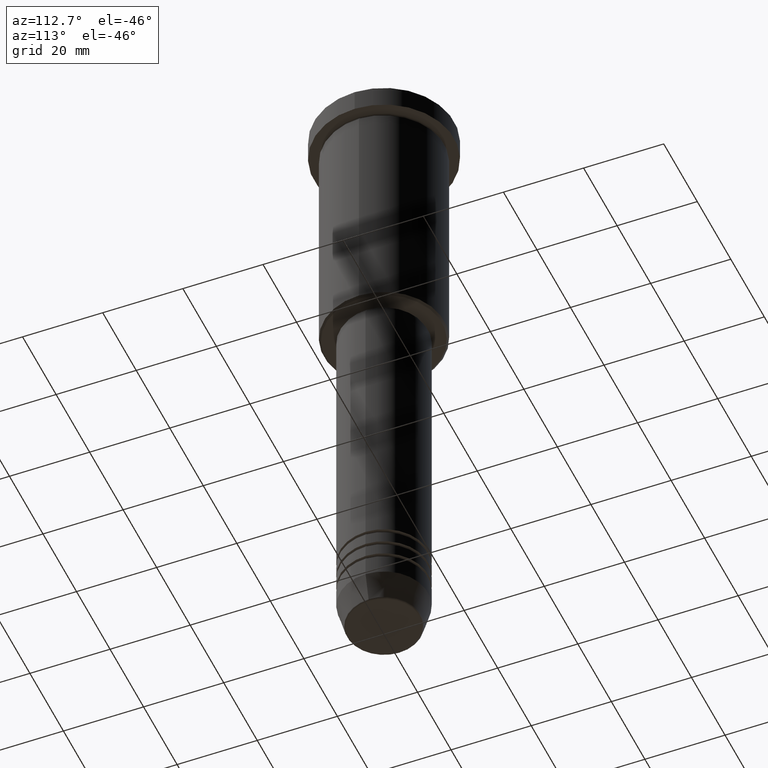
[diagram: clean part render]
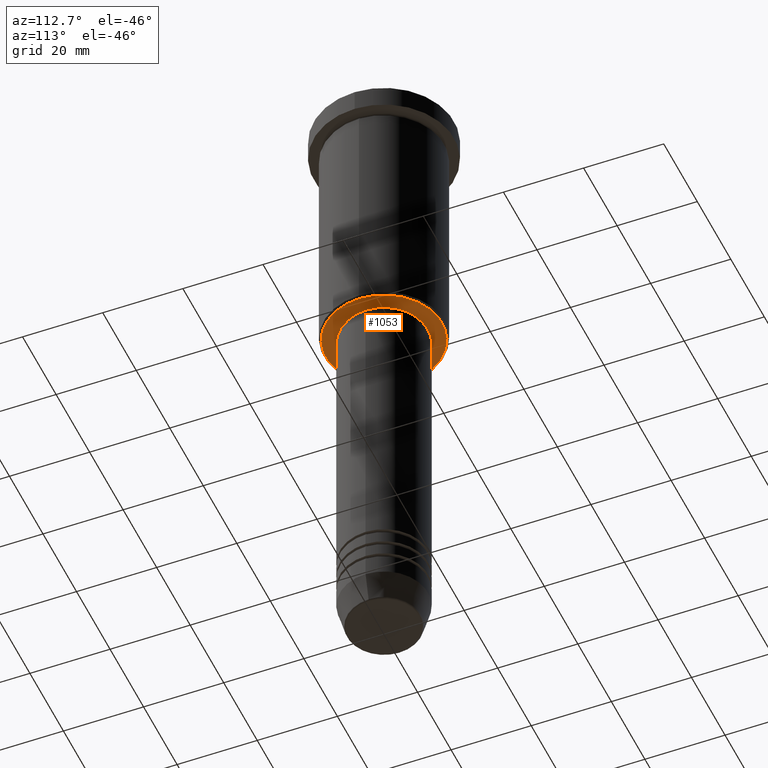
[diagram: same view with one face highlighted and labeled with its STEP entity id]
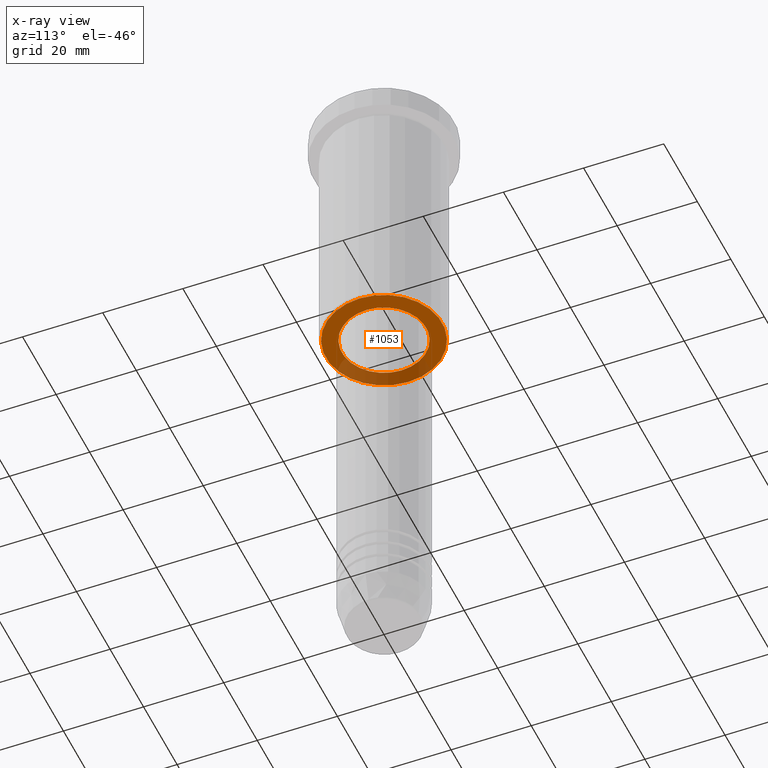
[diagram: x-ray of the same camera — body ghosted, the highlighted face saturated]
A machine part, auxiliary view. The second image highlights one B-rep face of the part: STEP entity #1053.
The next image is the same camera in x-ray: the body ghosted, the highlighted face saturated — about 29% of this face is hidden behind the body in this view.
In plain terms, the highlighted planar face has unit normal (0, 0, -1).
Its self-contained STEP definition (entity closure, byte-faithful):
#19 = AXIS2_PLACEMENT_3D ( 'NONE', #679, #1062, #150 ) ;
#109 = DIRECTION ( 'NONE',  ( 1.000000000000000000, 0.000000000000000000, 0.000000000000000000 ) ) ;
#111 = AXIS2_PLACEMENT_3D ( 'NONE', #141, #516, #602 ) ;
#141 = CARTESIAN_POINT ( 'NONE',  ( 0.000000000000000000, 0.000000000000000000, -66.00000000000002842 ) ) ;
#150 = DIRECTION ( 'NONE',  ( 1.000000000000000000, 0.000000000000000000, 0.000000000000000000 ) ) ;
#180 = FACE_BOUND ( 'NONE', #284, .T. ) ;
#252 = EDGE_CURVE ( 'NONE', #959, #542, #336, .T. ) ;
#267 = CARTESIAN_POINT ( 'NONE',  ( 0.000000000000000000, 0.000000000000000000, -66.00000000000002842 ) ) ;
#284 = EDGE_LOOP ( 'NONE', ( #873, #523 ) ) ;
#304 = CARTESIAN_POINT ( 'NONE',  ( -10.49999999999999822, 1.285879139104720633E-15, -66.00000000000002842 ) ) ;
#319 = AXIS2_PLACEMENT_3D ( 'NONE', #1177, #719, #1087 ) ;
#336 = CIRCLE ( 'NONE', #111, 14.50000000000002487 ) ;
#425 = VERTEX_POINT ( 'NONE', #980 ) ;
#449 = PLANE ( 'NONE',  #319 ) ;
#458 = EDGE_LOOP ( 'NONE', ( #793, #928 ) ) ;
#469 = EDGE_CURVE ( 'NONE', #542, #959, #760, .T. ) ;
#516 = DIRECTION ( 'NONE',  ( 0.000000000000000000, 0.000000000000000000, -1.000000000000000000 ) ) ;
#523 = ORIENTED_EDGE ( 'NONE', *, *, #923, .T. ) ;
#527 = DIRECTION ( 'NONE',  ( -1.000000000000000000, 0.000000000000000000, 0.000000000000000000 ) ) ;
#542 = VERTEX_POINT ( 'NONE', #932 ) ;
#547 = DIRECTION ( 'NONE',  ( 0.000000000000000000, 0.000000000000000000, -1.000000000000000000 ) ) ;
#556 = DIRECTION ( 'NONE',  ( -0.000000000000000000, -0.000000000000000000, 1.000000000000000000 ) ) ;
#602 = DIRECTION ( 'NONE',  ( -1.000000000000000000, 0.000000000000000000, 0.000000000000000000 ) ) ;
#647 = CARTESIAN_POINT ( 'NONE',  ( 0.000000000000000000, 0.000000000000000000, -66.00000000000002842 ) ) ;
#665 = AXIS2_PLACEMENT_3D ( 'NONE', #647, #556, #109 ) ;
#679 = CARTESIAN_POINT ( 'NONE',  ( 0.000000000000000000, 0.000000000000000000, -66.00000000000002842 ) ) ;
#699 = CARTESIAN_POINT ( 'NONE',  ( -14.50000000000002487, 1.806354028742347380E-15, -66.00000000000002842 ) ) ;
#719 = DIRECTION ( 'NONE',  ( 0.000000000000000000, 0.000000000000000000, -1.000000000000000000 ) ) ;
#760 = CIRCLE ( 'NONE', #1064, 14.50000000000002487 ) ;
#793 = ORIENTED_EDGE ( 'NONE', *, *, #469, .T. ) ;
#803 = VERTEX_POINT ( 'NONE', #304 ) ;
#807 = FACE_OUTER_BOUND ( 'NONE', #458, .T. ) ;
#869 = EDGE_CURVE ( 'NONE', #425, #803, #1033, .T. ) ;
#873 = ORIENTED_EDGE ( 'NONE', *, *, #869, .T. ) ;
#923 = EDGE_CURVE ( 'NONE', #803, #425, #1050, .T. ) ;
#928 = ORIENTED_EDGE ( 'NONE', *, *, #252, .T. ) ;
#932 = CARTESIAN_POINT ( 'NONE',  ( 14.50000000000002487, 0.000000000000000000, -66.00000000000002842 ) ) ;
#959 = VERTEX_POINT ( 'NONE', #699 ) ;
#980 = CARTESIAN_POINT ( 'NONE',  ( 10.49999999999999822, 0.000000000000000000, -66.00000000000002842 ) ) ;
#1033 = CIRCLE ( 'NONE', #665, 10.49999999999999822 ) ;
#1050 = CIRCLE ( 'NONE', #19, 10.49999999999999822 ) ;
#1053 = ADVANCED_FACE ( 'NONE', ( #807, #180 ), #449, .T. ) ;
#1062 = DIRECTION ( 'NONE',  ( -0.000000000000000000, -0.000000000000000000, 1.000000000000000000 ) ) ;
#1064 = AXIS2_PLACEMENT_3D ( 'NONE', #267, #547, #527 ) ;
#1087 = DIRECTION ( 'NONE',  ( -1.000000000000000000, 0.000000000000000000, -0.000000000000000000 ) ) ;
#1177 = CARTESIAN_POINT ( 'NONE',  ( 0.000000000000000000, 15.00000000000000000, -66.00000000000002842 ) ) ;